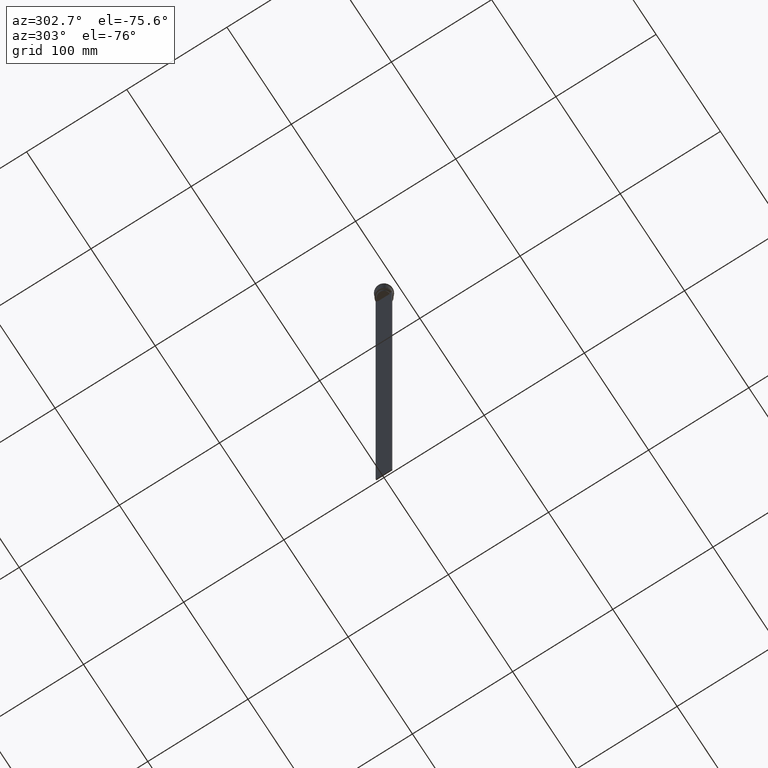
[diagram: clean part render]
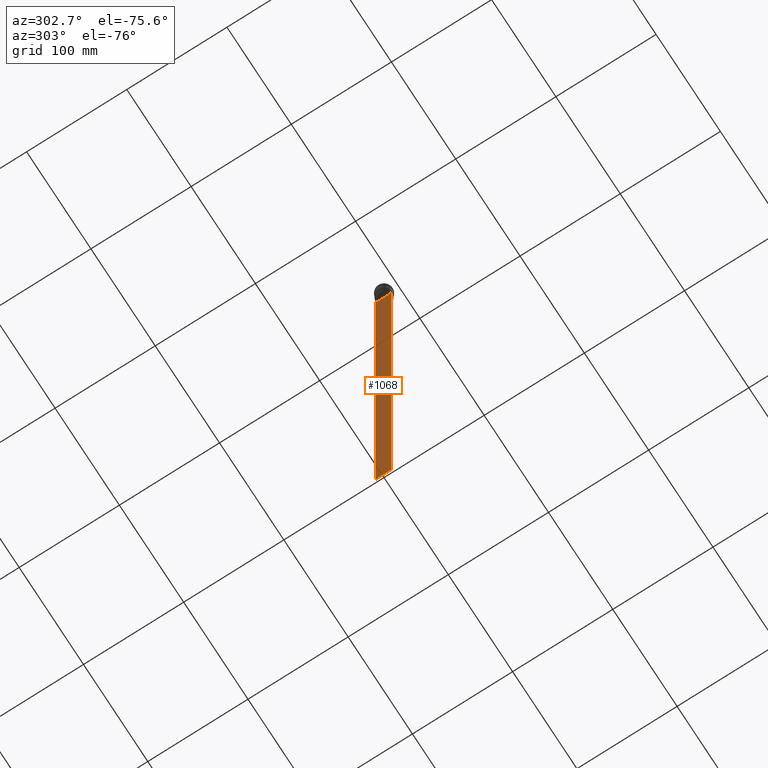
[diagram: same view with one face highlighted and labeled with its STEP entity id]
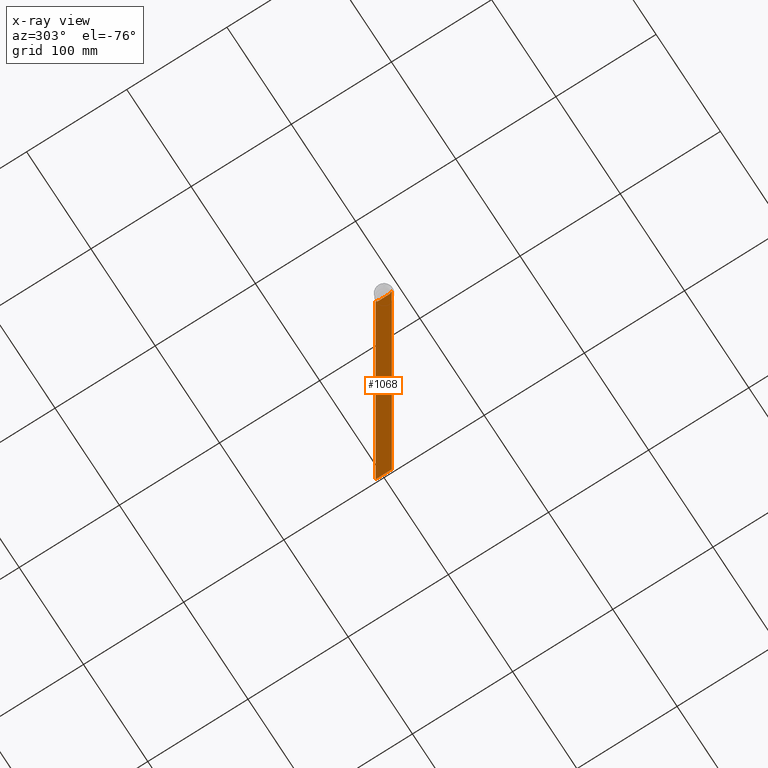
[diagram: x-ray of the same camera — body ghosted, the highlighted face saturated]
A machine part, auxiliary view. The second image highlights one B-rep face of the part: STEP entity #1068.
The next image is the same camera in x-ray: the body ghosted, the highlighted face saturated — about 0% of this face is hidden behind the body in this view.
In plain terms, the highlighted planar face has unit normal (-1, 0, 0).
Its self-contained STEP definition (entity closure, byte-faithful):
#66 = EDGE_CURVE ( 'NONE', #511, #1723, #1494, .T. ) ;
#83 = ORIENTED_EDGE ( 'NONE', *, *, #468, .F. ) ;
#87 = CARTESIAN_POINT ( 'NONE',  ( -0.4999999999999998890, 7.999999999999996447, 2.031219541881394530 ) ) ;
#142 = DIRECTION ( 'NONE',  ( 0.000000000000000000, -1.000000000000000000, 0.000000000000000000 ) ) ;
#145 = B_SPLINE_CURVE_WITH_KNOTS ( 'NONE', 3,
 ( #188, #956, #1538, #1580 ),
 .UNSPECIFIED., .F., .F.,
 ( 4, 4 ),
 ( 0.01172465562756038263, 0.01243276816391822651 ),
 .UNSPECIFIED. ) ;
#152 = LINE ( 'NONE', #1893, #1551 ) ;
#159 = VERTEX_POINT ( 'NONE', #1762 ) ;
#169 = EDGE_CURVE ( 'NONE', #966, #1830, #781, .T. ) ;
#170 = CARTESIAN_POINT ( 'NONE',  ( -0.4999999999999998890, 6.380438856379708312, 0.000000000000000000 ) ) ;
#188 = CARTESIAN_POINT ( 'NONE',  ( -0.4999999999999998890, 6.881860213634098500, -14.00000000000000178 ) ) ;
#240 = CARTESIAN_POINT ( 'NONE',  ( -0.4999999999999998890, -8.000000000000003553, -14.00000000000000178 ) ) ;
#256 = AXIS2_PLACEMENT_3D ( 'NONE', #2306, #594, #970 ) ;
#271 = EDGE_CURVE ( 'NONE', #1823, #721, #2209, .T. ) ;
#298 = VECTOR ( 'NONE', #2246, 1000.000000000000000 ) ;
#315 = CARTESIAN_POINT ( 'NONE',  ( -0.4999999999999998890, -6.881860213634098500, -14.00000000000000178 ) ) ;
#324 = DIRECTION ( 'NONE',  ( 0.000000000000000000, 0.000000000000000000, -1.000000000000000000 ) ) ;
#368 = CARTESIAN_POINT ( 'NONE',  ( -0.4999999999999998890, -6.380438856379708312, 0.000000000000000000 ) ) ;
#378 = VECTOR ( 'NONE', #2169, 1000.000000000000000 ) ;
#399 = LINE ( 'NONE', #409, #1299 ) ;
#409 = CARTESIAN_POINT ( 'NONE',  ( -0.4999999999999998890, -8.000000000000003553, -614.0000000000000000 ) ) ;
#410 = VERTEX_POINT ( 'NONE', #2261 ) ;
#468 = EDGE_CURVE ( 'NONE', #410, #1463, #1323, .T. ) ;
#475 = LINE ( 'NONE', #1027, #783 ) ;
#511 = VERTEX_POINT ( 'NONE', #2442 ) ;
#536 = VECTOR ( 'NONE', #1444, 1000.000000000000000 ) ;
#537 = CARTESIAN_POINT ( 'NONE',  ( -0.4999999999999998890, -6.547597841511246131, -14.33335192438652328 ) ) ;
#540 = ORIENTED_EDGE ( 'NONE', *, *, #66, .F. ) ;
#551 = ORIENTED_EDGE ( 'NONE', *, *, #169, .F. ) ;
#594 = DIRECTION ( 'NONE',  ( -1.000000000000000000, 0.000000000000000000, 0.000000000000000000 ) ) ;
#633 = DIRECTION ( 'NONE',  ( 0.000000000000000000, 1.000000000000000000, 0.000000000000000000 ) ) ;
#650 = EDGE_CURVE ( 'NONE', #721, #1948, #399, .T. ) ;
#690 = ORIENTED_EDGE ( 'NONE', *, *, #1367, .F. ) ;
#721 = VERTEX_POINT ( 'NONE', #1606 ) ;
#747 = ORIENTED_EDGE ( 'NONE', *, *, #271, .F. ) ;
#756 = LINE ( 'NONE', #2287, #1468 ) ;
#764 = DIRECTION ( 'NONE',  ( 0.000000000000000000, -1.000000000000000000, 0.000000000000000000 ) ) ;
#767 = EDGE_LOOP ( 'NONE', ( #1003, #1457, #1775, #815, #1196, #747, #690, #551, #1763, #540, #1617, #83 ) ) ;
#781 = LINE ( 'NONE', #240, #378 ) ;
#783 = VECTOR ( 'NONE', #2019, 1000.000000000000000 ) ;
#788 = EDGE_CURVE ( 'NONE', #159, #2061, #475, .T. ) ;
#801 = CARTESIAN_POINT ( 'NONE',  ( -0.4999999999999998890, 7.999999999999996447, -614.0000000000000000 ) ) ;
#815 = ORIENTED_EDGE ( 'NONE', *, *, #1245, .T. ) ;
#819 = EDGE_CURVE ( 'NONE', #1279, #159, #1820, .T. ) ;
#864 = EDGE_CURVE ( 'NONE', #1723, #966, #2338, .T. ) ;
#867 = CARTESIAN_POINT ( 'NONE',  ( -0.4999999999999998890, 6.881860213634098500, -14.00000000000000178 ) ) ;
#898 = VECTOR ( 'NONE', #324, 1000.000000000000000 ) ;
#956 = CARTESIAN_POINT ( 'NONE',  ( -0.4999999999999998890, 6.714736947114692711, -14.16668390704818847 ) ) ;
#966 = VERTEX_POINT ( 'NONE', #2478 ) ;
#970 = DIRECTION ( 'NONE',  ( 0.000000000000000000, 0.000000000000000000, 1.000000000000000000 ) ) ;
#975 = VECTOR ( 'NONE', #1400, 1000.000000000000000 ) ;
#977 = VECTOR ( 'NONE', #1658, 1000.000000000000000 ) ;
#1003 = ORIENTED_EDGE ( 'NONE', *, *, #1829, .F. ) ;
#1027 = CARTESIAN_POINT ( 'NONE',  ( -0.4999999999999998890, -8.000000000000003553, -14.00000000000000178 ) ) ;
#1068 = ADVANCED_FACE ( 'NONE', ( #1731 ), #1164, .T. ) ;
#1080 = CARTESIAN_POINT ( 'NONE',  ( -0.4999999999999998890, -8.000000000000003553, 2.031219541881394530 ) ) ;
#1125 = CARTESIAN_POINT ( 'NONE',  ( -0.4999999999999998890, 7.999999999999996447, -14.00000000000000178 ) ) ;
#1148 = CARTESIAN_POINT ( 'NONE',  ( -0.4999999999999998890, -7.884161337770806632, -14.00000000000000178 ) ) ;
#1164 = PLANE ( 'NONE',  #256 ) ;
#1196 = ORIENTED_EDGE ( 'NONE', *, *, #650, .F. ) ;
#1245 = EDGE_CURVE ( 'NONE', #1279, #1948, #2359, .T. ) ;
#1250 = CARTESIAN_POINT ( 'NONE',  ( -0.4999999999999998890, -8.000000000000003553, -14.00000000000000178 ) ) ;
#1279 = VERTEX_POINT ( 'NONE', #1125 ) ;
#1299 = VECTOR ( 'NONE', #633, 1000.000000000000000 ) ;
#1306 = CARTESIAN_POINT ( 'NONE',  ( -0.4999999999999998890, -6.714736947305992132, -14.16668390685738999 ) ) ;
#1323 = LINE ( 'NONE', #170, #898 ) ;
#1334 = CARTESIAN_POINT ( 'NONE',  ( -0.4999999999999998890, -8.000000000000003553, -14.00000000000000178 ) ) ;
#1367 = EDGE_CURVE ( 'NONE', #1830, #1823, #152, .T. ) ;
#1400 = DIRECTION ( 'NONE',  ( 0.000000000000000000, 0.000000000000000000, -1.000000000000000000 ) ) ;
#1444 = DIRECTION ( 'NONE',  ( 0.000000000000000000, -1.000000000000000000, 0.000000000000000000 ) ) ;
#1457 = ORIENTED_EDGE ( 'NONE', *, *, #788, .F. ) ;
#1463 = VERTEX_POINT ( 'NONE', #1931 ) ;
#1468 = VECTOR ( 'NONE', #764, 1000.000000000000000 ) ;
#1494 = LINE ( 'NONE', #368, #298 ) ;
#1538 = CARTESIAN_POINT ( 'NONE',  ( -0.4999999999999998890, 6.547597841304911626, -14.33335192459222718 ) ) ;
#1551 = VECTOR ( 'NONE', #142, 1000.000000000000000 ) ;
#1580 = CARTESIAN_POINT ( 'NONE',  ( -0.4999999999999998890, 6.380438856379708312, -14.50000000000000000 ) ) ;
#1606 = CARTESIAN_POINT ( 'NONE',  ( -0.4999999999999998890, -8.000000000000003553, -614.0000000000000000 ) ) ;
#1617 = ORIENTED_EDGE ( 'NONE', *, *, #1817, .F. ) ;
#1658 = DIRECTION ( 'NONE',  ( 0.000000000000000000, 0.000000000000000000, -1.000000000000000000 ) ) ;
#1723 = VERTEX_POINT ( 'NONE', #1735 ) ;
#1731 = FACE_OUTER_BOUND ( 'NONE', #767, .T. ) ;
#1735 = CARTESIAN_POINT ( 'NONE',  ( -0.4999999999999998890, -6.380438856379708312, -14.50000000000000000 ) ) ;
#1762 = CARTESIAN_POINT ( 'NONE',  ( -0.4999999999999998890, 7.884161337770806632, -14.00000000000000178 ) ) ;
#1763 = ORIENTED_EDGE ( 'NONE', *, *, #864, .F. ) ;
#1775 = ORIENTED_EDGE ( 'NONE', *, *, #819, .F. ) ;
#1797 = CARTESIAN_POINT ( 'NONE',  ( -0.4999999999999998890, -6.380438856379708312, -14.50000000000000000 ) ) ;
#1817 = EDGE_CURVE ( 'NONE', #1463, #511, #756, .T. ) ;
#1820 = LINE ( 'NONE', #1250, #536 ) ;
#1823 = VERTEX_POINT ( 'NONE', #1334 ) ;
#1829 = EDGE_CURVE ( 'NONE', #2061, #410, #145, .T. ) ;
#1830 = VERTEX_POINT ( 'NONE', #1148 ) ;
#1893 = CARTESIAN_POINT ( 'NONE',  ( -0.4999999999999998890, -8.000000000000003553, -14.00000000000000178 ) ) ;
#1931 = CARTESIAN_POINT ( 'NONE',  ( -0.4999999999999998890, 6.380438856379708312, -17.00000000000000000 ) ) ;
#1948 = VERTEX_POINT ( 'NONE', #801 ) ;
#2019 = DIRECTION ( 'NONE',  ( 0.000000000000000000, -1.000000000000000000, 0.000000000000000000 ) ) ;
#2061 = VERTEX_POINT ( 'NONE', #867 ) ;
#2169 = DIRECTION ( 'NONE',  ( 0.000000000000000000, -1.000000000000000000, 0.000000000000000000 ) ) ;
#2209 = LINE ( 'NONE', #1080, #977 ) ;
#2246 = DIRECTION ( 'NONE',  ( -0.000000000000000000, -0.000000000000000000, 1.000000000000000000 ) ) ;
#2261 = CARTESIAN_POINT ( 'NONE',  ( -0.4999999999999998890, 6.380438856379708312, -14.50000000000000000 ) ) ;
#2287 = CARTESIAN_POINT ( 'NONE',  ( -0.4999999999999998890, 6.399999999999999467, -17.00000000000000000 ) ) ;
#2306 = CARTESIAN_POINT ( 'NONE',  ( -0.4999999999999998890, -8.000000000000003553, 2.031219541881394530 ) ) ;
#2338 = B_SPLINE_CURVE_WITH_KNOTS ( 'NONE', 3,
 ( #1797, #537, #1306, #315 ),
 .UNSPECIFIED., .F., .F.,
 ( 4, 4 ),
 ( 0.02996184199614749730, 0.03067452609193703841 ),
 .UNSPECIFIED. ) ;
#2359 = LINE ( 'NONE', #87, #975 ) ;
#2442 = CARTESIAN_POINT ( 'NONE',  ( -0.4999999999999998890, -6.380438856379708312, -17.00000000000000000 ) ) ;
#2478 = CARTESIAN_POINT ( 'NONE',  ( -0.4999999999999998890, -6.881860213634098500, -14.00000000000000178 ) ) ;